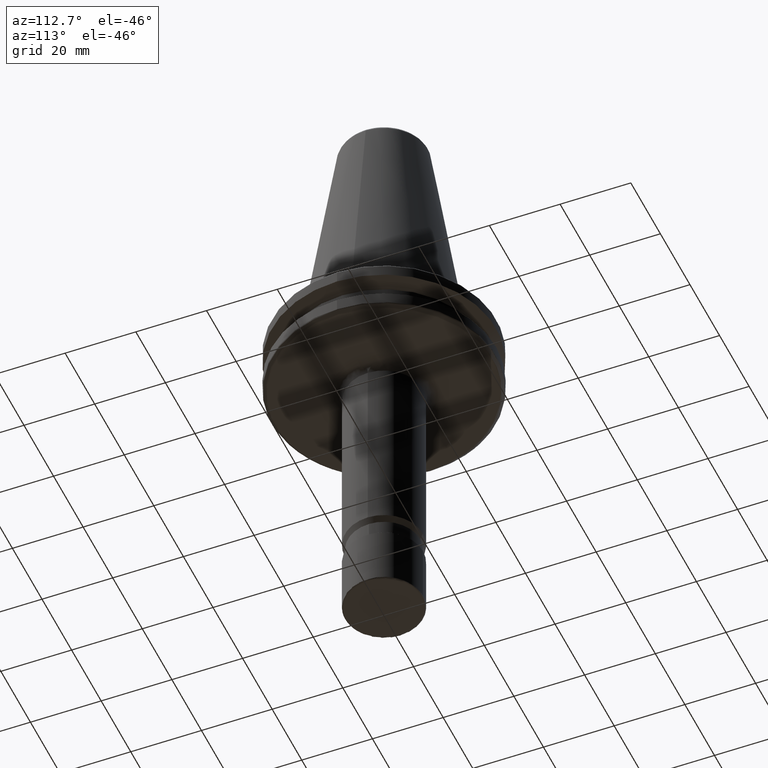
[diagram: clean part render]
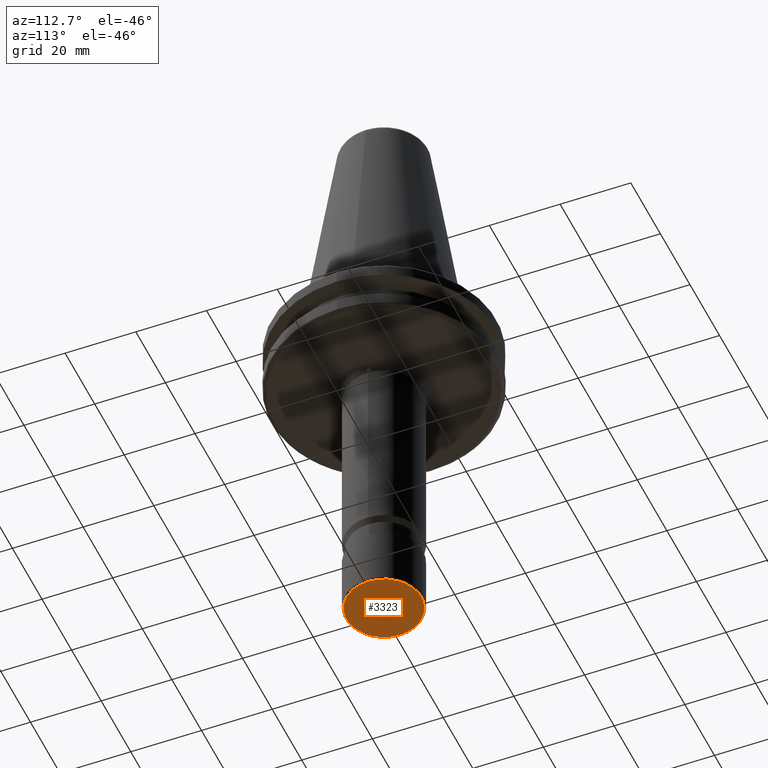
[diagram: same view with one face highlighted and labeled with its STEP entity id]
A machine part, auxiliary view. The second image highlights one B-rep face of the part: STEP entity #3323.
In plain terms, the highlighted planar face has unit normal (0, 0, -1).
Its self-contained STEP definition (entity closure, byte-faithful):
#53 = EDGE_LOOP ( 'NONE', ( #158, #1660 ) ) ;
#80 = AXIS2_PLACEMENT_3D ( 'NONE', #2278, #3330, #169 ) ;
#98 = VERTEX_POINT ( 'NONE', #1407 ) ;
#158 = ORIENTED_EDGE ( 'NONE', *, *, #3238, .F. ) ;
#159 = FACE_OUTER_BOUND ( 'NONE', #53, .T. ) ;
#164 = CIRCLE ( 'NONE', #1927, 10.59999999965447000 ) ;
#169 = DIRECTION ( 'NONE',  ( 1.000000000000000000, 0.0000000000000000000, 0.0000000000000000000 ) ) ;
#465 = VERTEX_POINT ( 'NONE', #2634 ) ;
#627 = DIRECTION ( 'NONE',  ( 0.0000000000000000000, -0.0000000000000000000, 1.000000000000000000 ) ) ;
#942 = CARTESIAN_POINT ( 'NONE',  ( 10.72719999999999800, -10.72719999999999800, -100.0000000000000000 ) ) ;
#1407 = CARTESIAN_POINT ( 'NONE',  ( 10.59999999965447000, 0.0000000000000000000, -99.99999999988922600 ) ) ;
#1660 = ORIENTED_EDGE ( 'NONE', *, *, #2244, .F. ) ;
#1927 = AXIS2_PLACEMENT_3D ( 'NONE', #2207, #627, #2482 ) ;
#2056 = CIRCLE ( 'NONE', #80, 10.59999999965447000 ) ;
#2194 = AXIS2_PLACEMENT_3D ( 'NONE', #942, #2490, #2212 ) ;
#2207 = CARTESIAN_POINT ( 'NONE',  ( 0.0000000000000000000, 0.0000000000000000000, -99.99999999988922600 ) ) ;
#2212 = DIRECTION ( 'NONE',  ( -1.000000000000000000, 0.0000000000000000000, 0.0000000000000000000 ) ) ;
#2244 = EDGE_CURVE ( 'NONE', #465, #98, #164, .T. ) ;
#2278 = CARTESIAN_POINT ( 'NONE',  ( 0.0000000000000000000, 0.0000000000000000000, -99.99999999988922600 ) ) ;
#2482 = DIRECTION ( 'NONE',  ( 1.000000000000000000, 0.0000000000000000000, 0.0000000000000000000 ) ) ;
#2490 = DIRECTION ( 'NONE',  ( 0.0000000000000000000, 0.0000000000000000000, -1.000000000000000000 ) ) ;
#2634 = CARTESIAN_POINT ( 'NONE',  ( -10.59999999965447000, 1.322618543051199400E-015, -99.99999999988922600 ) ) ;
#3027 = PLANE ( 'NONE',  #2194 ) ;
#3238 = EDGE_CURVE ( 'NONE', #98, #465, #2056, .T. ) ;
#3323 = ADVANCED_FACE ( 'NONE', ( #159 ), #3027, .T. ) ;
#3330 = DIRECTION ( 'NONE',  ( 0.0000000000000000000, -0.0000000000000000000, 1.000000000000000000 ) ) ;